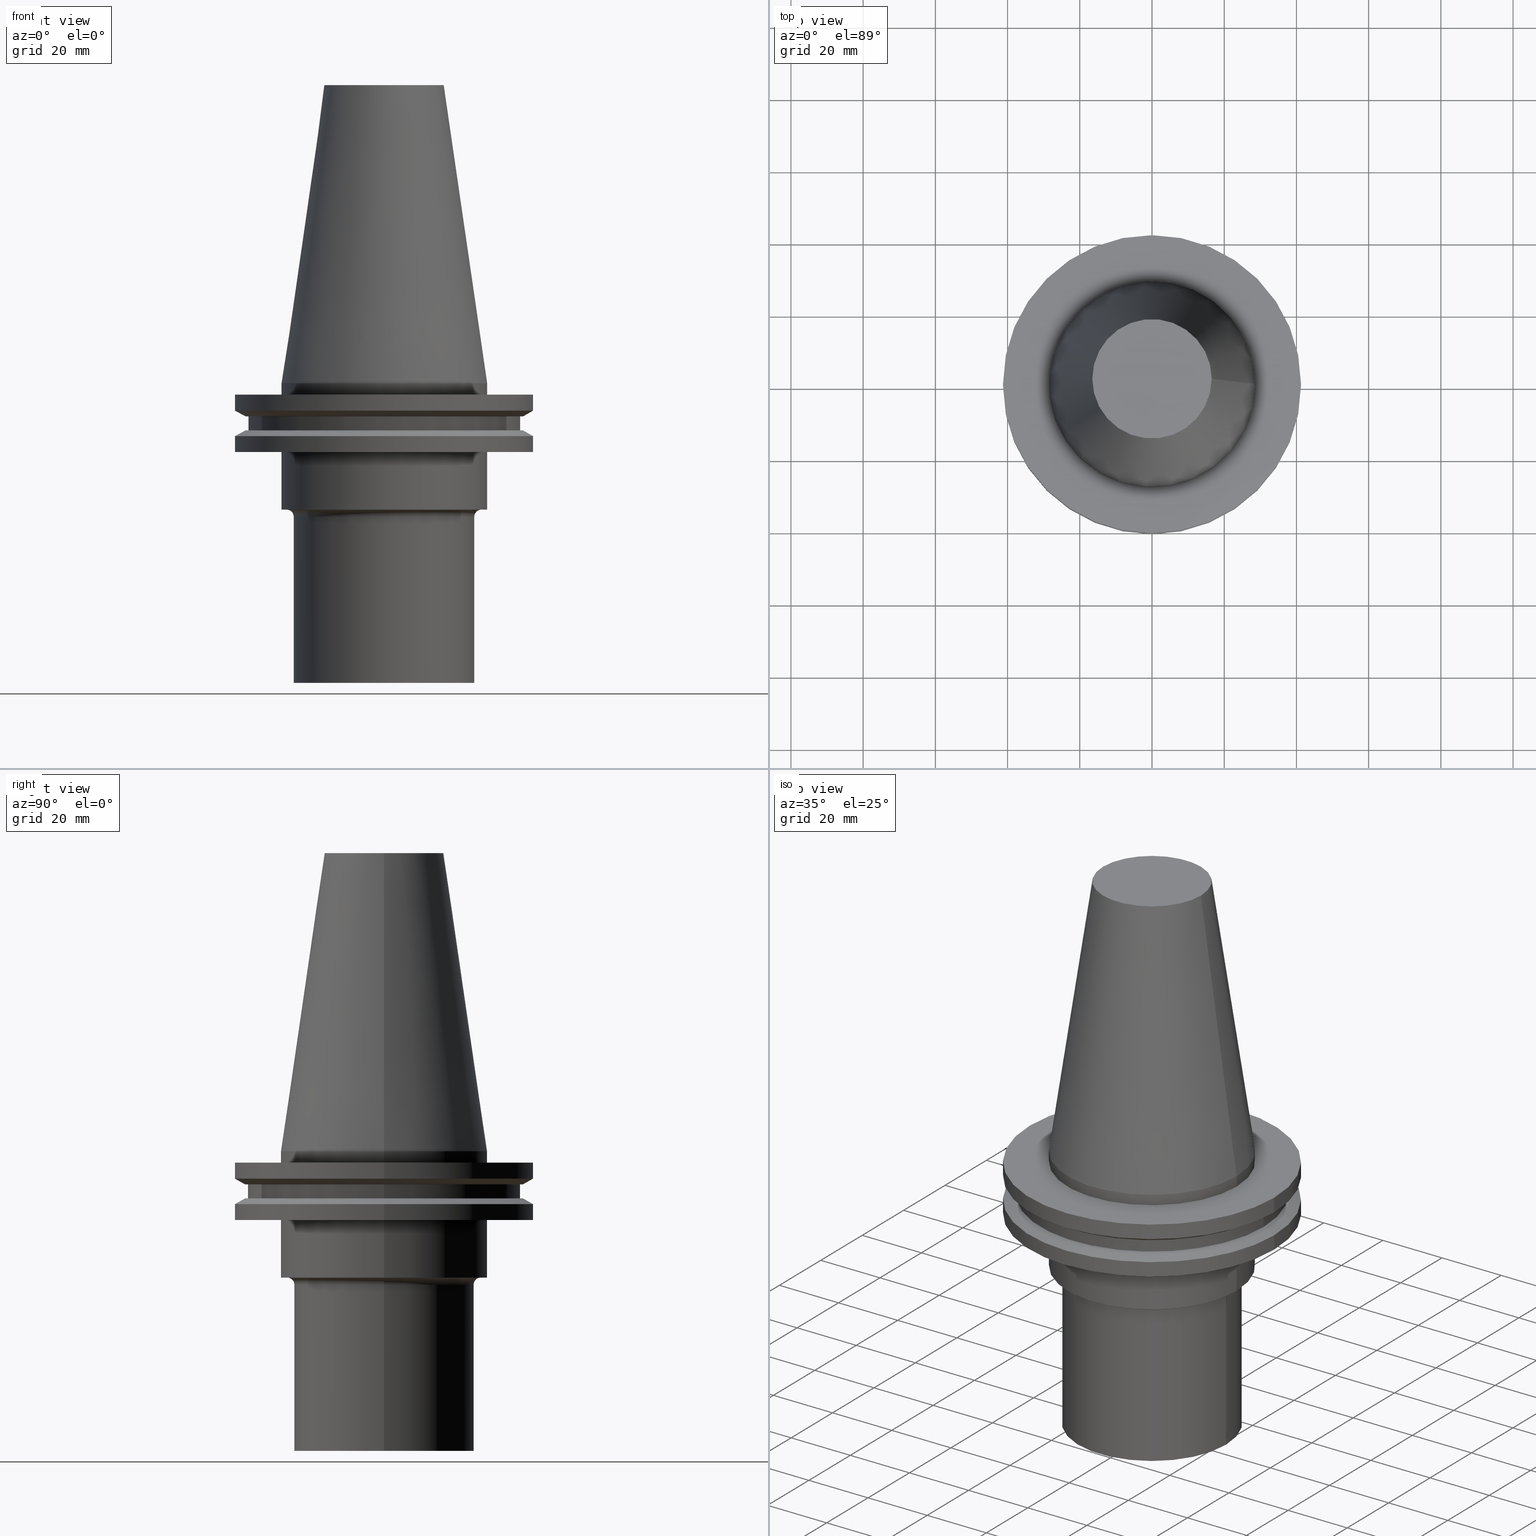
[diagram: canonical four-view strip — front | top / right | iso, engineering-drawing reading convention]
A machine part, canonical four-view strip (front | top / right | iso — engineering-drawing reading convention). The complete STEP part file that produces these views, byte-faithful:
ISO-10303-21;
HEADER;
FILE_DESCRIPTION (( 'STEP AP203' ),
    '1' );
FILE_NAME ('11.326.552.stp',
    '2022-03-09T14:26:19',
    ( '' ),
    ( '' ),
    'SwSTEP 2.0',
    'SolidWorks 2021',
    '' );
FILE_SCHEMA (( 'CONFIG_CONTROL_DESIGN' ));
ENDSEC;

DATA;
#1 = ADVANCED_FACE ( 'NONE', ( #158, #347 ), #351, .T. ) ;
#2 = DIRECTION ( 'NONE',  ( 1.000000000000000000, 0.000000000000000000, 0.000000000000000000 ) ) ;
#3 = CARTESIAN_POINT ( 'NONE',  ( 0.000000000000000000, 0.000000000000000000, -37.00000000000000711 ) ) ;
#4 = DESIGN_CONTEXT ( 'detailed design', #284, 'design' ) ;
#5 = DATE_AND_TIME ( #203, #391 ) ;
#6 = FACE_OUTER_BOUND ( 'NONE', #277, .T. ) ;
#7 = TOROIDAL_SURFACE ( 'NONE', #71, 27.00000000000000355, 2.000000000000000000 ) ;
#8 = APPROVAL_ROLE ( '' ) ;
#9 = CC_DESIGN_SECURITY_CLASSIFICATION ( #82, ( #214 ) ) ;
#10 = ADVANCED_FACE ( 'NONE', ( #377, #321 ), #250, .T. ) ;
#11 = CARTESIAN_POINT ( 'NONE',  ( 0.000000000000000000, 0.000000000000000000, -19.04999999999999716 ) ) ;
#12 = DIRECTION ( 'NONE',  ( -0.000000000000000000, -0.000000000000000000, 1.000000000000000000 ) ) ;
#13 = PERSON_AND_ORGANIZATION ( #388, #287 ) ;
#14 = CARTESIAN_POINT ( 'NONE',  ( 0.000000000000000000, 0.000000000000000000, -13.05499999999999794 ) ) ;
#15 = AXIS2_PLACEMENT_3D ( 'NONE', #291, #137, #237 ) ;
#16 = APPROVAL_PERSON_ORGANIZATION ( #235, #256, #263 ) ;
#17 = VERTEX_POINT ( 'NONE', #337 ) ;
#18 = EDGE_CURVE ( 'NONE', #405, #405, #141, .T. ) ;
#19 = CARTESIAN_POINT ( 'NONE',  ( 28.57499999999999929, 0.000000000000000000, -34.99999999999999289 ) ) ;
#20 = ORIENTED_EDGE ( 'NONE', *, *, #128, .F. ) ;
#21 = CARTESIAN_POINT ( 'NONE',  ( 28.57499999999999929, 0.000000000000000000, -19.04999999999999716 ) ) ;
#22 = EDGE_LOOP ( 'NONE', ( #408 ) ) ;
#23 = AXIS2_PLACEMENT_3D ( 'NONE', #99, #361, #332 ) ;
#24 = ADVANCED_FACE ( 'NONE', ( #129, #30 ), #31, .T. ) ;
#25 = CARTESIAN_POINT ( 'NONE',  ( 41.27500000000000568, 0.000000000000000000, -7.605276606597321631 ) ) ;
#26 = CARTESIAN_POINT ( 'NONE',  ( 16.53634466332832886, 0.000000000000000000, 82.55000000000001137 ) ) ;
#27 = EDGE_LOOP ( 'NONE', ( #205 ) ) ;
#28 = ORIENTED_EDGE ( 'NONE', *, *, #61, .F. ) ;
#29 = CIRCLE ( 'NONE', #331, 25.00000000000000355 ) ;
#30 = FACE_OUTER_BOUND ( 'NONE', #406, .T. ) ;
#31 = CYLINDRICAL_SURFACE ( 'NONE', #38, 25.00000000000000000 ) ;
#32 = AXIS2_PLACEMENT_3D ( 'NONE', #231, #386, #392 ) ;
#33 = LOCAL_TIME ( 8, 26, 19.00000000000000000, #360 ) ;
#34 = EDGE_LOOP ( 'NONE', ( #348 ) ) ;
#35 = CYLINDRICAL_SURFACE ( 'NONE', #253, 37.70499999999999829 ) ;
#36 = APPROVAL_ROLE ( '' ) ;
#37 = FACE_BOUND ( 'NONE', #121, .T. ) ;
#38 = AXIS2_PLACEMENT_3D ( 'NONE', #94, #219, #254 ) ;
#39 = CARTESIAN_POINT ( 'NONE',  ( 0.000000000000000000, 0.000000000000000000, -3.174999999999997158 ) ) ;
#40 = PERSON_AND_ORGANIZATION ( #388, #287 ) ;
#41 = DIRECTION ( 'NONE',  ( 1.000000000000000000, 0.000000000000000000, 0.000000000000000000 ) ) ;
#42 = APPROVAL_STATUS ( 'not_yet_approved' ) ;
#43 = PRODUCT_RELATED_PRODUCT_CATEGORY ( 'detail', '', ( #66 ) ) ;
#44 = FACE_OUTER_BOUND ( 'NONE', #353, .T. ) ;
#45 = EDGE_CURVE ( 'NONE', #48, #48, #301, .T. ) ;
#46 = CARTESIAN_POINT ( 'NONE',  ( 0.000000000000000000, 16.53634466332832886, 82.55000000000001137 ) ) ;
#47 = ORIENTED_EDGE ( 'NONE', *, *, #338, .T. ) ;
#48 = VERTEX_POINT ( 'NONE', #402 ) ;
#49 = EDGE_LOOP ( 'NONE', ( #278 ) ) ;
#50 = VERTEX_POINT ( 'NONE', #19 ) ;
#51 = EDGE_LOOP ( 'NONE', ( #275 ) ) ;
#52 = ADVANCED_FACE ( 'NONE', ( #98, #222 ), #189, .T. ) ;
#53 = CARTESIAN_POINT ( 'NONE',  ( 0.000000000000000000, 0.000000000000000000, 82.55000000000001137 ) ) ;
#54 = CARTESIAN_POINT ( 'NONE',  ( 38.50419780457011854, 0.000000000000000000, -9.205000000000005400 ) ) ;
#55 = ORIENTED_EDGE ( 'NONE', *, *, #18, .T. ) ;
#56 = CARTESIAN_POINT ( 'NONE',  ( 0.000000000000000000, 0.000000000000000000, 82.54999999999999716 ) ) ;
#57 = DIRECTION ( 'NONE',  ( -0.000000000000000000, -0.000000000000000000, 1.000000000000000000 ) ) ;
#58 = CC_DESIGN_APPROVAL ( #256, ( #82 ) ) ;
#59 = EDGE_LOOP ( 'NONE', ( #132 ) ) ;
#60 = EDGE_LOOP ( 'NONE', ( #47 ) ) ;
#61 = EDGE_CURVE ( 'NONE', #116, #116, #117, .T. ) ;
#62 = CARTESIAN_POINT ( 'NONE',  ( 0.000000000000000000, 0.000000000000000000, -35.00000000000000000 ) ) ;
#63 = AXIS2_PLACEMENT_3D ( 'NONE', #46, #344, #342 ) ;
#64 = CARTESIAN_POINT ( 'NONE',  ( 0.000000000000000000, 25.00000000000000000, -83.00000000000000000 ) ) ;
#65 = PERSON_AND_ORGANIZATION ( #388, #287 ) ;
#66 = PRODUCT ( '11.326.552', '11.326.552', '', ( #393 ) ) ;
#67 = CARTESIAN_POINT ( 'NONE',  ( 0.000000000000000000, 28.57499999999999929, -35.00000000000000000 ) ) ;
#68 = DATE_TIME_ROLE ( 'classification_date' ) ;
#69 = APPLICATION_CONTEXT ( 'configuration controlled 3d designs of mechanical parts and assemblies' ) ;
#70 = FACE_OUTER_BOUND ( 'NONE', #60, .T. ) ;
#71 = AXIS2_PLACEMENT_3D ( 'NONE', #3, #354, #164 ) ;
#72 = FACE_OUTER_BOUND ( 'NONE', #93, .T. ) ;
#73 = SECURITY_CLASSIFICATION_LEVEL ( 'unclassified' ) ;
#74 = DIRECTION ( 'NONE',  ( -0.000000000000000000, -0.000000000000000000, 1.000000000000000000 ) ) ;
#75 = SHAPE_DEFINITION_REPRESENTATION ( #261, #383 ) ;
#76 = ADVANCED_FACE ( 'NONE', ( #194, #126 ), #322, .F. ) ;
#77 = DIRECTION ( 'NONE',  ( -0.000000000000000000, -0.000000000000000000, 1.000000000000000000 ) ) ;
#78 = ORIENTED_EDGE ( 'NONE', *, *, #161, .F. ) ;
#79 = CARTESIAN_POINT ( 'NONE',  ( 0.000000000000000000, 0.000000000000000000, -37.00000000000000711 ) ) ;
#80 = EDGE_LOOP ( 'NONE', ( #368 ) ) ;
#81 = AXIS2_PLACEMENT_3D ( 'NONE', #11, #12, #140 ) ;
#82 = SECURITY_CLASSIFICATION ( '', '', #73 ) ;
#83 = VERTEX_POINT ( 'NONE', #209 ) ;
#84 = EDGE_LOOP ( 'NONE', ( #55 ) ) ;
#85 = VERTEX_POINT ( 'NONE', #370 ) ;
#86 = EDGE_LOOP ( 'NONE', ( #20 ) ) ;
#87 = CARTESIAN_POINT ( 'NONE',  ( 0.000000000000000000, 0.000000000000000000, -7.605276606597321631 ) ) ;
#88 = ORIENTED_EDGE ( 'NONE', *, *, #356, .T. ) ;
#89 = CC_DESIGN_APPROVAL ( #293, ( #303 ) ) ;
#90 =( NAMED_UNIT ( * ) SI_UNIT ( $, .STERADIAN. ) SOLID_ANGLE_UNIT ( ) );
#91 = EDGE_LOOP ( 'NONE', ( #118 ) ) ;
#92 = ADVANCED_FACE ( 'NONE', ( #319, #352 ), #283, .F. ) ;
#93 = EDGE_LOOP ( 'NONE', ( #28 ) ) ;
#94 = CARTESIAN_POINT ( 'NONE',  ( 0.000000000000000000, 0.000000000000000000, 0.000000000000000000 ) ) ;
#95 = AXIS2_PLACEMENT_3D ( 'NONE', #64, #223, #107 ) ;
#96 = EDGE_CURVE ( 'NONE', #17, #17, #323, .T. ) ;
#97 = DIRECTION ( 'NONE',  ( 1.000000000000000000, 0.000000000000000000, 0.000000000000000000 ) ) ;
#98 = FACE_OUTER_BOUND ( 'NONE', #59, .T. ) ;
#99 = CARTESIAN_POINT ( 'NONE',  ( 0.000000000000000000, 0.000000000000000000, 82.54999999999999716 ) ) ;
#100 = APPROVAL_STATUS ( 'not_yet_approved' ) ;
#101 = CLOSED_SHELL ( 'NONE', ( #272, #379, #176, #52, #314, #1, #320, #268, #212, #92, #387, #115, #76, #10, #152, #24, #146 ) ) ;
#102 = CIRCLE ( 'NONE', #411, 37.70499999999999829 ) ;
#103 = FACE_OUTER_BOUND ( 'NONE', #86, .T. ) ;
#104 = CALENDAR_DATE ( 2022, 9, 3 ) ;
#105 = PLANE ( 'NONE',  #381 ) ;
#106 = CARTESIAN_POINT ( 'NONE',  ( 0.000000000000000000, 0.000000000000000000, 0.000000000000000000 ) ) ;
#107 = DIRECTION ( 'NONE',  ( 1.000000000000000000, 0.000000000000000000, 0.000000000000000000 ) ) ;
#108 = PERSON_AND_ORGANIZATION ( #388, #287 ) ;
#109 = CIRCLE ( 'NONE', #316, 41.27499999999999147 ) ;
#110 = DIRECTION ( 'NONE',  ( 1.000000000000000000, 0.000000000000000000, 0.000000000000000000 ) ) ;
#111 = AXIS2_PLACEMENT_3D ( 'NONE', #53, #304, #270 ) ;
#112 = DIRECTION ( 'NONE',  ( 1.000000000000000000, 0.000000000000000000, 0.000000000000000000 ) ) ;
#113 = DIRECTION ( 'NONE',  ( 1.000000000000000000, 0.000000000000000000, 0.000000000000000000 ) ) ;
#114 = ORIENTED_EDGE ( 'NONE', *, *, #128, .T. ) ;
#115 = ADVANCED_FACE ( 'NONE', ( #103, #44 ), #359, .T. ) ;
#116 = VERTEX_POINT ( 'NONE', #242 ) ;
#117 = CIRCLE ( 'NONE', #155, 27.00000000000000355 ) ;
#118 = ORIENTED_EDGE ( 'NONE', *, *, #346, .T. ) ;
#119 = FACE_BOUND ( 'NONE', #84, .T. ) ;
#120 = DIRECTION ( 'NONE',  ( -0.000000000000000000, -0.000000000000000000, 1.000000000000000000 ) ) ;
#121 = EDGE_LOOP ( 'NONE', ( #403 ) ) ;
#122 = VERTEX_POINT ( 'NONE', #26 ) ;
#123 = EDGE_LOOP ( 'NONE', ( #246 ) ) ;
#124 = EDGE_CURVE ( 'NONE', #307, #307, #349, .T. ) ;
#125 = CONICAL_SURFACE ( 'NONE', #184, 41.27500000000000568, 1.047197551196589860 ) ;
#126 = FACE_OUTER_BOUND ( 'NONE', #216, .T. ) ;
#127 = ORIENTED_EDGE ( 'NONE', *, *, #170, .F. ) ;
#128 = EDGE_CURVE ( 'NONE', #144, #144, #109, .T. ) ;
#129 = FACE_OUTER_BOUND ( 'NONE', #312, .T. ) ;
#130 = AXIS2_PLACEMENT_3D ( 'NONE', #234, #397, #364 ) ;
#131 = AXIS2_PLACEMENT_3D ( 'NONE', #106, #328, #289 ) ;
#132 = ORIENTED_EDGE ( 'NONE', *, *, #124, .F. ) ;
#133 = CARTESIAN_POINT ( 'NONE',  ( 0.000000000000000000, 0.000000000000000000, -34.99999999999999289 ) ) ;
#134 = DIRECTION ( 'NONE',  ( -0.000000000000000000, -0.000000000000000000, 1.000000000000000000 ) ) ;
#135 = APPROVAL_STATUS ( 'not_yet_approved' ) ;
#136 = AXIS2_PLACEMENT_3D ( 'NONE', #175, #245, #206 ) ;
#137 = DIRECTION ( 'NONE',  ( 0.000000000000000000, -0.000000000000000000, 1.000000000000000000 ) ) ;
#138 = COORDINATED_UNIVERSAL_TIME_OFFSET ( 6, 0, .BEHIND. ) ;
#139 = FACE_OUTER_BOUND ( 'NONE', #51, .T. ) ;
#140 = DIRECTION ( 'NONE',  ( 1.000000000000000000, 0.000000000000000000, 0.000000000000000000 ) ) ;
#141 = CIRCLE ( 'NONE', #376, 38.50419780457011854 ) ;
#142 = APPROVAL ( #135, 'UNSPECIFIED' ) ;
#143 = FACE_OUTER_BOUND ( 'NONE', #80, .T. ) ;
#144 = VERTEX_POINT ( 'NONE', #240 ) ;
#145 = ORIENTED_EDGE ( 'NONE', *, *, #161, .T. ) ;
#146 = ADVANCED_FACE ( 'NONE', ( #72, #70 ), #7, .F. ) ;
#147 = DIRECTION ( 'NONE',  ( -0.000000000000000000, -0.000000000000000000, 1.000000000000000000 ) ) ;
#148 = CC_DESIGN_PERSON_AND_ORGANIZATION_ASSIGNMENT ( #13, #260, ( #214 ) ) ;
#149 = CARTESIAN_POINT ( 'NONE',  ( 25.00000000000000000, 0.000000000000000000, -83.00000000000000000 ) ) ;
#150 = AXIS2_PLACEMENT_3D ( 'NONE', #188, #57, #97 ) ;
#151 = VERTEX_POINT ( 'NONE', #276 ) ;
#152 = ADVANCED_FACE ( 'NONE', ( #171 ), #395, .F. ) ;
#153 = EDGE_LOOP ( 'NONE', ( #181 ) ) ;
#154 = DIRECTION ( 'NONE',  ( -0.000000000000000000, -0.000000000000000000, 1.000000000000000000 ) ) ;
#155 = AXIS2_PLACEMENT_3D ( 'NONE', #62, #157, #221 ) ;
#156 = CARTESIAN_POINT ( 'NONE',  ( 0.000000000000000000, 41.27499999999999147, -3.174999999999994493 ) ) ;
#157 = DIRECTION ( 'NONE',  ( -0.000000000000000000, -0.000000000000000000, 1.000000000000000000 ) ) ;
#158 = FACE_OUTER_BOUND ( 'NONE', #345, .T. ) ;
#159 = AXIS2_PLACEMENT_3D ( 'NONE', #56, #154, #193 ) ;
#160 = ORIENTED_EDGE ( 'NONE', *, *, #61, .T. ) ;
#161 = EDGE_CURVE ( 'NONE', #179, #179, #239, .T. ) ;
#162 = CARTESIAN_POINT ( 'NONE',  ( 0.000000000000000000, 0.000000000000000000, 82.54999999999999716 ) ) ;
#163 = PERSON_AND_ORGANIZATION ( #388, #287 ) ;
#164 = DIRECTION ( 'NONE',  ( 1.000000000000000000, 0.000000000000000000, 0.000000000000000000 ) ) ;
#165 = COORDINATED_UNIVERSAL_TIME_OFFSET ( 6, 0, .BEHIND. ) ;
#166 = AXIS2_PLACEMENT_3D ( 'NONE', #202, #227, #110 ) ;
#167 = CC_DESIGN_APPROVAL ( #142, ( #214 ) ) ;
#168 = DIRECTION ( 'NONE',  ( 1.000000000000000000, 0.000000000000000000, 0.000000000000000000 ) ) ;
#169 = APPROVAL_DATE_TIME ( #330, #256 ) ;
#170 = EDGE_CURVE ( 'NONE', #372, #372, #404, .T. ) ;
#171 = FACE_OUTER_BOUND ( 'NONE', #410, .T. ) ;
#172 = APPLICATION_PROTOCOL_DEFINITION ( 'international standard', 'config_control_design', 1994, #69 ) ;
#173 = CC_DESIGN_DATE_AND_TIME_ASSIGNMENT ( #358, #68, ( #82 ) ) ;
#174 = FACE_OUTER_BOUND ( 'NONE', #217, .T. ) ;
#175 = CARTESIAN_POINT ( 'NONE',  ( 0.000000000000000000, 0.000000000000000000, -9.205000000000005400 ) ) ;
#176 = ADVANCED_FACE ( 'NONE', ( #357, #174 ), #105, .F. ) ;
#177 = AXIS2_PLACEMENT_3D ( 'NONE', #367, #340, #366 ) ;
#178 = EDGE_LOOP ( 'NONE', ( #374 ) ) ;
#179 = VERTEX_POINT ( 'NONE', #149 ) ;
#180 = DIRECTION ( 'NONE',  ( 0.000000000000000000, 0.000000000000000000, -1.000000000000000000 ) ) ;
#181 = ORIENTED_EDGE ( 'NONE', *, *, #243, .T. ) ;
#182 = CARTESIAN_POINT ( 'NONE',  ( 37.70499999999999829, 0.000000000000000000, -9.205000000000005400 ) ) ;
#183 = ORIENTED_EDGE ( 'NONE', *, *, #299, .F. ) ;
#184 = AXIS2_PLACEMENT_3D ( 'NONE', #267, #180, #407 ) ;
#185 = MANIFOLD_SOLID_BREP ( 'CKB', #101 ) ;
#186 = CARTESIAN_POINT ( 'NONE',  ( 37.70499999999999829, 0.000000000000000000, -13.05499999999999794 ) ) ;
#187 = EDGE_LOOP ( 'NONE', ( #341 ) ) ;
#188 = CARTESIAN_POINT ( 'NONE',  ( 0.000000000000000000, 0.000000000000000000, 82.54999999999999716 ) ) ;
#189 = CYLINDRICAL_SURFACE ( 'NONE', #248, 28.57499999999999929 ) ;
#190 = AXIS2_PLACEMENT_3D ( 'NONE', #378, #385, #279 ) ;
#191 = CIRCLE ( 'NONE', #111, 16.53634466332832886 ) ;
#192 = DIRECTION ( 'NONE',  ( -0.000000000000000000, -0.000000000000000000, 1.000000000000000000 ) ) ;
#193 = DIRECTION ( 'NONE',  ( 1.000000000000000000, 0.000000000000000000, 0.000000000000000000 ) ) ;
#194 = FACE_BOUND ( 'NONE', #339, .T. ) ;
#195 = AXIS2_PLACEMENT_3D ( 'NONE', #262, #290, #327 ) ;
#196 = DIRECTION ( 'NONE',  ( 1.000000000000000000, 0.000000000000000000, 0.000000000000000000 ) ) ;
#197 = PERSON_AND_ORGANIZATION_ROLE ( 'design_owner' ) ;
#198 = DIRECTION ( 'NONE',  ( 1.000000000000000000, 0.000000000000000000, 0.000000000000000000 ) ) ;
#199 = CARTESIAN_POINT ( 'NONE',  ( 0.000000000000000000, 0.000000000000000000, 0.000000000000000000 ) ) ;
#200 = PERSON_AND_ORGANIZATION ( #388, #287 ) ;
#201 = CIRCLE ( 'NONE', #309, 28.57499999999999929 ) ;
#202 = CARTESIAN_POINT ( 'NONE',  ( 0.000000000000000000, 0.000000000000000000, -83.00000000000000000 ) ) ;
#203 = CALENDAR_DATE ( 2022, 9, 3 ) ;
#204 = FACE_OUTER_BOUND ( 'NONE', #244, .T. ) ;
#205 = ORIENTED_EDGE ( 'NONE', *, *, #96, .T. ) ;
#206 = DIRECTION ( 'NONE',  ( 1.000000000000000000, 0.000000000000000000, 0.000000000000000000 ) ) ;
#207 = APPROVAL_PERSON_ORGANIZATION ( #65, #142, #36 ) ;
#208 = ORIENTED_EDGE ( 'NONE', *, *, #243, .F. ) ;
#209 = CARTESIAN_POINT ( 'NONE',  ( 25.00000000000000355, 0.000000000000000000, -37.00000000000000711 ) ) ;
#210 = VERTEX_POINT ( 'NONE', #182 ) ;
#211 = ORIENTED_EDGE ( 'NONE', *, *, #170, .T. ) ;
#212 = ADVANCED_FACE ( 'NONE', ( #295, #139 ), #35, .T. ) ;
#213 = VERTEX_POINT ( 'NONE', #186 ) ;
#214 = PRODUCT_DEFINITION_FORMATION_WITH_SPECIFIED_SOURCE ( 'ANY', '', #66, .NOT_KNOWN. ) ;
#215 =( LENGTH_UNIT ( ) NAMED_UNIT ( * ) SI_UNIT ( .MILLI., .METRE. ) );
#216 = EDGE_LOOP ( 'NONE', ( #114 ) ) ;
#217 = EDGE_LOOP ( 'NONE', ( #208 ) ) ;
#218 = CC_DESIGN_DATE_AND_TIME_ASSIGNMENT ( #5, #228, ( #303 ) ) ;
#219 = DIRECTION ( 'NONE',  ( -0.000000000000000000, -0.000000000000000000, 1.000000000000000000 ) ) ;
#220 = AXIS2_PLACEMENT_3D ( 'NONE', #199, #324, #264 ) ;
#221 = DIRECTION ( 'NONE',  ( 1.000000000000000000, 0.000000000000000000, 0.000000000000000000 ) ) ;
#222 = FACE_OUTER_BOUND ( 'NONE', #153, .T. ) ;
#223 = DIRECTION ( 'NONE',  ( 0.000000000000000000, -0.000000000000000000, 1.000000000000000000 ) ) ;
#224 = COORDINATED_UNIVERSAL_TIME_OFFSET ( 6, 0, .BEHIND. ) ;
#225 = CC_DESIGN_PERSON_AND_ORGANIZATION_ASSIGNMENT ( #108, #326, ( #303 ) ) ;
#226 = AXIS2_PLACEMENT_3D ( 'NONE', #87, #77, #400 ) ;
#227 = DIRECTION ( 'NONE',  ( -0.000000000000000000, -0.000000000000000000, 1.000000000000000000 ) ) ;
#228 = DATE_TIME_ROLE ( 'creation_date' ) ;
#229 = DIRECTION ( 'NONE',  ( -0.000000000000000000, -0.000000000000000000, 1.000000000000000000 ) ) ;
#230 = DATE_AND_TIME ( #333, #310 ) ;
#231 = CARTESIAN_POINT ( 'NONE',  ( 0.000000000000000000, 0.000000000000000000, 0.000000000000000000 ) ) ;
#232 = APPROVAL_DATE_TIME ( #230, #142 ) ;
#233 = AXIS2_PLACEMENT_3D ( 'NONE', #414, #288, #2 ) ;
#234 = CARTESIAN_POINT ( 'NONE',  ( 0.000000000000000000, 37.70499999999999829, -13.05500000000000149 ) ) ;
#235 = PERSON_AND_ORGANIZATION ( #388, #287 ) ;
#236 = CARTESIAN_POINT ( 'NONE',  ( 0.000000000000000000, 0.000000000000000000, -19.04999999999999716 ) ) ;
#237 = DIRECTION ( 'NONE',  ( 1.000000000000000000, 0.000000000000000000, 0.000000000000000000 ) ) ;
#238 = EDGE_LOOP ( 'NONE', ( #343 ) ) ;
#239 = CIRCLE ( 'NONE', #166, 25.00000000000000000 ) ;
#240 = CARTESIAN_POINT ( 'NONE',  ( 41.27499999999999147, 0.000000000000000000, -3.174999999999997158 ) ) ;
#241 = ORIENTED_EDGE ( 'NONE', *, *, #394, .T. ) ;
#242 = CARTESIAN_POINT ( 'NONE',  ( 27.00000000000000355, 0.000000000000000000, -35.00000000000000000 ) ) ;
#243 = EDGE_CURVE ( 'NONE', #50, #50, #201, .T. ) ;
#244 = EDGE_LOOP ( 'NONE', ( #241 ) ) ;
#245 = DIRECTION ( 'NONE',  ( -0.000000000000000000, -0.000000000000000000, 1.000000000000000000 ) ) ;
#246 = ORIENTED_EDGE ( 'NONE', *, *, #299, .T. ) ;
#247 =( NAMED_UNIT ( * ) PLANE_ANGLE_UNIT ( ) SI_UNIT ( $, .RADIAN. ) );
#248 = AXIS2_PLACEMENT_3D ( 'NONE', #412, #192, #317 ) ;
#249 = ORIENTED_EDGE ( 'NONE', *, *, #338, .F. ) ;
#250 = CYLINDRICAL_SURFACE ( 'NONE', #150, 28.57499999999999218 ) ;
#251 = DIRECTION ( 'NONE',  ( -1.000000000000000000, 0.000000000000000000, -0.000000000000000000 ) ) ;
#252 = CARTESIAN_POINT ( 'NONE',  ( 0.000000000000000000, 0.000000000000000000, -13.05500000000001037 ) ) ;
#253 = AXIS2_PLACEMENT_3D ( 'NONE', #162, #134, #297 ) ;
#254 = DIRECTION ( 'NONE',  ( 1.000000000000000000, 0.000000000000000000, 0.000000000000000000 ) ) ;
#255 = FACE_BOUND ( 'NONE', #178, .T. ) ;
#256 = APPROVAL ( #42, 'UNSPECIFIED' ) ;
#257 = FACE_OUTER_BOUND ( 'NONE', #308, .T. ) ;
#258 = CALENDAR_DATE ( 2022, 9, 3 ) ;
#259 = DIRECTION ( 'NONE',  ( 0.000000000000000000, -0.000000000000000000, 1.000000000000000000 ) ) ;
#260 = PERSON_AND_ORGANIZATION_ROLE ( 'creator' ) ;
#261 = PRODUCT_DEFINITION_SHAPE ( 'NONE', 'NONE',  #303 ) ;
#262 = CARTESIAN_POINT ( 'NONE',  ( 0.000000000000000000, 0.000000000000000000, -14.65472339340269414 ) ) ;
#263 = APPROVAL_ROLE ( '' ) ;
#264 = DIRECTION ( 'NONE',  ( 1.000000000000000000, 0.000000000000000000, 0.000000000000000000 ) ) ;
#265 = DATE_AND_TIME ( #104, #266 ) ;
#266 = LOCAL_TIME ( 8, 26, 19.00000000000000000, #224 ) ;
#267 = CARTESIAN_POINT ( 'NONE',  ( 0.000000000000000000, 0.000000000000000000, -14.65472339340269414 ) ) ;
#268 = ADVANCED_FACE ( 'NONE', ( #334, #300 ), #329, .F. ) ;
#269 = PLANE ( 'NONE',  #63 ) ;
#270 = DIRECTION ( 'NONE',  ( 1.000000000000000000, 0.000000000000000000, 0.000000000000000000 ) ) ;
#271 = EDGE_LOOP ( 'NONE', ( #127 ) ) ;
#272 = ADVANCED_FACE ( 'NONE', ( #255, #6 ), #398, .T. ) ;
#273 = AXIS2_PLACEMENT_3D ( 'NONE', #156, #413, #251 ) ;
#274 = FACE_OUTER_BOUND ( 'NONE', #123, .T. ) ;
#275 = ORIENTED_EDGE ( 'NONE', *, *, #375, .T. ) ;
#276 = CARTESIAN_POINT ( 'NONE',  ( 41.27499999999999147, 0.000000000000000000, -19.04999999999999716 ) ) ;
#277 = EDGE_LOOP ( 'NONE', ( #211 ) ) ;
#278 = ORIENTED_EDGE ( 'NONE', *, *, #45, .T. ) ;
#279 = DIRECTION ( 'NONE',  ( 1.000000000000000000, 0.000000000000000000, 0.000000000000000000 ) ) ;
#280 = CONICAL_SURFACE ( 'NONE', #136, 38.50419780457011854, 1.047197551196589860 ) ;
#281 = CC_DESIGN_PERSON_AND_ORGANIZATION_ASSIGNMENT ( #200, #197, ( #66 ) ) ;
#282 = EDGE_LOOP ( 'NONE', ( #160 ) ) ;
#283 = PLANE ( 'NONE',  #233 ) ;
#284 = APPLICATION_CONTEXT ( 'configuration controlled 3d designs of mechanical parts and assemblies' ) ;
#285 = CARTESIAN_POINT ( 'NONE',  ( 0.000000000000000000, 0.000000000000000000, -9.205000000000005400 ) ) ;
#286 = CIRCLE ( 'NONE', #195, 41.27500000000000568 ) ;
#287 = ORGANIZATION ( 'UNSPECIFIED', 'UNSPECIFIED', '' ) ;
#288 = DIRECTION ( 'NONE',  ( 0.000000000000000000, -0.000000000000000000, 1.000000000000000000 ) ) ;
#289 = DIRECTION ( 'NONE',  ( 1.000000000000000000, 0.000000000000000000, 0.000000000000000000 ) ) ;
#290 = DIRECTION ( 'NONE',  ( -0.000000000000000000, -0.000000000000000000, 1.000000000000000000 ) ) ;
#291 = CARTESIAN_POINT ( 'NONE',  ( 0.000000000000000000, 41.27499999999999147, -19.04999999999999716 ) ) ;
#292 = CALENDAR_DATE ( 2022, 9, 3 ) ;
#293 = APPROVAL ( #100, 'UNSPECIFIED' ) ;
#294 = CIRCLE ( 'NONE', #226, 41.27500000000000568 ) ;
#295 = FACE_OUTER_BOUND ( 'NONE', #187, .T. ) ;
#296 = PERSON_AND_ORGANIZATION_ROLE ( 'classification_officer' ) ;
#297 = DIRECTION ( 'NONE',  ( 1.000000000000000000, 0.000000000000000000, 0.000000000000000000 ) ) ;
#298 = APPROVAL_DATE_TIME ( #265, #293 ) ;
#299 = EDGE_CURVE ( 'NONE', #85, #85, #286, .T. ) ;
#300 = FACE_OUTER_BOUND ( 'NONE', #27, .T. ) ;
#301 = CIRCLE ( 'NONE', #190, 28.57499999999999218 ) ;
#302 =( GEOMETRIC_REPRESENTATION_CONTEXT ( 3 ) GLOBAL_UNCERTAINTY_ASSIGNED_CONTEXT ( ( #325 ) ) GLOBAL_UNIT_ASSIGNED_CONTEXT ( ( #215, #247, #90 ) ) REPRESENTATION_CONTEXT ( 'NONE', 'WORKASPACE' ) );
#303 = PRODUCT_DEFINITION ( 'UNKNOWN', '', #214, #4 ) ;
#304 = DIRECTION ( 'NONE',  ( -0.000000000000000000, -0.000000000000000000, 1.000000000000000000 ) ) ;
#305 = CARTESIAN_POINT ( 'NONE',  ( 28.57499999999999218, 0.000000000000000000, 0.000000000000000000 ) ) ;
#306 = ORIENTED_EDGE ( 'NONE', *, *, #362, .F. ) ;
#307 = VERTEX_POINT ( 'NONE', #21 ) ;
#308 = EDGE_LOOP ( 'NONE', ( #306 ) ) ;
#309 = AXIS2_PLACEMENT_3D ( 'NONE', #133, #229, #198 ) ;
#310 = LOCAL_TIME ( 8, 26, 19.00000000000000000, #335 ) ;
#311 = VERTEX_POINT ( 'NONE', #25 ) ;
#312 = EDGE_LOOP ( 'NONE', ( #249 ) ) ;
#313 = EDGE_LOOP ( 'NONE', ( #371 ) ) ;
#314 = ADVANCED_FACE ( 'NONE', ( #257, #37 ), #389, .F. ) ;
#315 = DIRECTION ( 'NONE',  ( -0.000000000000000000, -0.000000000000000000, 1.000000000000000000 ) ) ;
#316 = AXIS2_PLACEMENT_3D ( 'NONE', #39, #74, #41 ) ;
#317 = DIRECTION ( 'NONE',  ( 1.000000000000000000, 0.000000000000000000, 0.000000000000000000 ) ) ;
#318 = AXIS2_PLACEMENT_3D ( 'NONE', #236, #120, #401 ) ;
#319 = FACE_OUTER_BOUND ( 'NONE', #34, .T. ) ;
#320 = ADVANCED_FACE ( 'NONE', ( #373, #274 ), #125, .T. ) ;
#321 = FACE_OUTER_BOUND ( 'NONE', #49, .T. ) ;
#322 = PLANE ( 'NONE',  #273 ) ;
#323 = CIRCLE ( 'NONE', #390, 38.50419780457011854 ) ;
#324 = DIRECTION ( 'NONE',  ( -0.000000000000000000, -0.000000000000000000, 1.000000000000000000 ) ) ;
#325 = UNCERTAINTY_MEASURE_WITH_UNIT (LENGTH_MEASURE( 1.000000000000000082E-05 ), #215, 'distance_accuracy_value', 'NONE');
#326 = PERSON_AND_ORGANIZATION_ROLE ( 'creator' ) ;
#327 = DIRECTION ( 'NONE',  ( 1.000000000000000000, 0.000000000000000000, 0.000000000000000000 ) ) ;
#328 = DIRECTION ( 'NONE',  ( 0.000000000000000000, 0.000000000000000000, 1.000000000000000000 ) ) ;
#329 = PLANE ( 'NONE',  #130 ) ;
#330 = DATE_AND_TIME ( #292, #369 ) ;
#331 = AXIS2_PLACEMENT_3D ( 'NONE', #79, #336, #113 ) ;
#332 = DIRECTION ( 'NONE',  ( 1.000000000000000000, 0.000000000000000000, 0.000000000000000000 ) ) ;
#333 = CALENDAR_DATE ( 2022, 9, 3 ) ;
#334 = FACE_BOUND ( 'NONE', #22, .T. ) ;
#335 = COORDINATED_UNIVERSAL_TIME_OFFSET ( 6, 0, .BEHIND. ) ;
#336 = DIRECTION ( 'NONE',  ( -0.000000000000000000, -0.000000000000000000, 1.000000000000000000 ) ) ;
#337 = CARTESIAN_POINT ( 'NONE',  ( 38.50419780457011854, 0.000000000000000000, -13.05500000000001037 ) ) ;
#338 = EDGE_CURVE ( 'NONE', #83, #83, #29, .T. ) ;
#339 = EDGE_LOOP ( 'NONE', ( #380 ) ) ;
#340 = DIRECTION ( 'NONE',  ( -0.000000000000000000, -0.000000000000000000, 1.000000000000000000 ) ) ;
#341 = ORIENTED_EDGE ( 'NONE', *, *, #346, .F. ) ;
#342 = DIRECTION ( 'NONE',  ( -1.000000000000000000, 0.000000000000000000, -0.000000000000000000 ) ) ;
#343 = ORIENTED_EDGE ( 'NONE', *, *, #96, .F. ) ;
#344 = DIRECTION ( 'NONE',  ( 0.000000000000000000, 0.000000000000000000, -1.000000000000000000 ) ) ;
#345 = EDGE_LOOP ( 'NONE', ( #183 ) ) ;
#346 = EDGE_CURVE ( 'NONE', #210, #210, #350, .T. ) ;
#347 = FACE_OUTER_BOUND ( 'NONE', #313, .T. ) ;
#348 = ORIENTED_EDGE ( 'NONE', *, *, #18, .F. ) ;
#349 = CIRCLE ( 'NONE', #81, 28.57499999999999929 ) ;
#350 = CIRCLE ( 'NONE', #177, 37.70499999999999829 ) ;
#351 = CYLINDRICAL_SURFACE ( 'NONE', #159, 41.27499999999999858 ) ;
#352 = FACE_BOUND ( 'NONE', #91, .T. ) ;
#353 = EDGE_LOOP ( 'NONE', ( #88 ) ) ;
#354 = DIRECTION ( 'NONE',  ( -0.000000000000000000, -0.000000000000000000, 1.000000000000000000 ) ) ;
#355 = CIRCLE ( 'NONE', #318, 41.27499999999999147 ) ;
#356 = EDGE_CURVE ( 'NONE', #311, #311, #294, .T. ) ;
#357 = FACE_BOUND ( 'NONE', #282, .T. ) ;
#358 = DATE_AND_TIME ( #258, #33 ) ;
#359 = CYLINDRICAL_SURFACE ( 'NONE', #23, 41.27499999999999858 ) ;
#360 = COORDINATED_UNIVERSAL_TIME_OFFSET ( 6, 0, .BEHIND. ) ;
#361 = DIRECTION ( 'NONE',  ( -0.000000000000000000, -0.000000000000000000, 1.000000000000000000 ) ) ;
#362 = EDGE_CURVE ( 'NONE', #151, #151, #355, .T. ) ;
#363 = PERSON_AND_ORGANIZATION_ROLE ( 'design_supplier' ) ;
#364 = DIRECTION ( 'NONE',  ( -1.000000000000000000, 0.000000000000000000, -0.000000000000000000 ) ) ;
#365 = APPLICATION_PROTOCOL_DEFINITION ( 'international standard', 'config_control_design', 1994, #284 ) ;
#366 = DIRECTION ( 'NONE',  ( 1.000000000000000000, 0.000000000000000000, 0.000000000000000000 ) ) ;
#367 = CARTESIAN_POINT ( 'NONE',  ( 0.000000000000000000, 0.000000000000000000, -9.205000000000005400 ) ) ;
#368 = ORIENTED_EDGE ( 'NONE', *, *, #356, .F. ) ;
#369 = LOCAL_TIME ( 8, 26, 19.00000000000000000, #165 ) ;
#370 = CARTESIAN_POINT ( 'NONE',  ( 41.27500000000000568, 0.000000000000000000, -14.65472339340269414 ) ) ;
#371 = ORIENTED_EDGE ( 'NONE', *, *, #362, .T. ) ;
#372 = VERTEX_POINT ( 'NONE', #305 ) ;
#373 = FACE_BOUND ( 'NONE', #238, .T. ) ;
#374 = ORIENTED_EDGE ( 'NONE', *, *, #394, .F. ) ;
#375 = EDGE_CURVE ( 'NONE', #213, #213, #102, .T. ) ;
#376 = AXIS2_PLACEMENT_3D ( 'NONE', #285, #315, #415 ) ;
#377 = FACE_OUTER_BOUND ( 'NONE', #271, .T. ) ;
#378 = CARTESIAN_POINT ( 'NONE',  ( 0.000000000000000000, 0.000000000000000000, -3.174999999999997158 ) ) ;
#379 = ADVANCED_FACE ( 'NONE', ( #204 ), #269, .F. ) ;
#380 = ORIENTED_EDGE ( 'NONE', *, *, #45, .F. ) ;
#381 = AXIS2_PLACEMENT_3D ( 'NONE', #67, #259, #168 ) ;
#382 = CC_DESIGN_PERSON_AND_ORGANIZATION_ASSIGNMENT ( #40, #296, ( #82 ) ) ;
#383 = ADVANCED_BREP_SHAPE_REPRESENTATION ( '11.326.552', ( #185, #131 ), #302 ) ;
#384 = DIRECTION ( 'NONE',  ( -0.000000000000000000, -0.000000000000000000, 1.000000000000000000 ) ) ;
#385 = DIRECTION ( 'NONE',  ( -0.000000000000000000, -0.000000000000000000, 1.000000000000000000 ) ) ;
#386 = DIRECTION ( 'NONE',  ( 0.000000000000000000, 0.000000000000000000, -1.000000000000000000 ) ) ;
#387 = ADVANCED_FACE ( 'NONE', ( #143, #119 ), #280, .T. ) ;
#388 = PERSON ( 'UNSPECIFIED', 'UNSPECIFIED', 'UNSPECIFIED', ('UNSPECIFIED'), ('UNSPECIFIED'), ('UNSPECIFIED') ) ;
#389 = PLANE ( 'NONE',  #15 ) ;
#390 = AXIS2_PLACEMENT_3D ( 'NONE', #252, #384, #196 ) ;
#391 = LOCAL_TIME ( 8, 26, 19.00000000000000000, #138 ) ;
#392 = DIRECTION ( 'NONE',  ( -1.000000000000000000, 0.000000000000000000, 0.000000000000000000 ) ) ;
#393 = MECHANICAL_CONTEXT ( 'NONE', #69, 'mechanical' ) ;
#394 = EDGE_CURVE ( 'NONE', #122, #122, #191, .T. ) ;
#395 = PLANE ( 'NONE',  #95 ) ;
#396 = PERSON_AND_ORGANIZATION ( #388, #287 ) ;
#397 = DIRECTION ( 'NONE',  ( 0.000000000000000000, 0.000000000000000000, -1.000000000000000000 ) ) ;
#398 = CONICAL_SURFACE ( 'NONE', #32, 28.57499999999999218, 0.1448138465474119174 ) ;
#399 = APPROVAL_PERSON_ORGANIZATION ( #396, #293, #8 ) ;
#400 = DIRECTION ( 'NONE',  ( 1.000000000000000000, 0.000000000000000000, 0.000000000000000000 ) ) ;
#401 = DIRECTION ( 'NONE',  ( 1.000000000000000000, 0.000000000000000000, 0.000000000000000000 ) ) ;
#402 = CARTESIAN_POINT ( 'NONE',  ( 28.57499999999999218, 0.000000000000000000, -3.174999999999997158 ) ) ;
#403 = ORIENTED_EDGE ( 'NONE', *, *, #124, .T. ) ;
#404 = CIRCLE ( 'NONE', #220, 28.57499999999999218 ) ;
#405 = VERTEX_POINT ( 'NONE', #54 ) ;
#406 = EDGE_LOOP ( 'NONE', ( #145 ) ) ;
#407 = DIRECTION ( 'NONE',  ( -1.000000000000000000, 0.000000000000000000, 0.000000000000000000 ) ) ;
#408 = ORIENTED_EDGE ( 'NONE', *, *, #375, .F. ) ;
#409 = CC_DESIGN_PERSON_AND_ORGANIZATION_ASSIGNMENT ( #163, #363, ( #214 ) ) ;
#410 = EDGE_LOOP ( 'NONE', ( #78 ) ) ;
#411 = AXIS2_PLACEMENT_3D ( 'NONE', #14, #147, #112 ) ;
#412 = CARTESIAN_POINT ( 'NONE',  ( 0.000000000000000000, 0.000000000000000000, 82.54999999999999716 ) ) ;
#413 = DIRECTION ( 'NONE',  ( 0.000000000000000000, 0.000000000000000000, -1.000000000000000000 ) ) ;
#414 = CARTESIAN_POINT ( 'NONE',  ( 0.000000000000000000, 38.50419780457011854, -9.205000000000001847 ) ) ;
#415 = DIRECTION ( 'NONE',  ( 1.000000000000000000, 0.000000000000000000, 0.000000000000000000 ) ) ;
ENDSEC;
END-ISO-10303-21;
